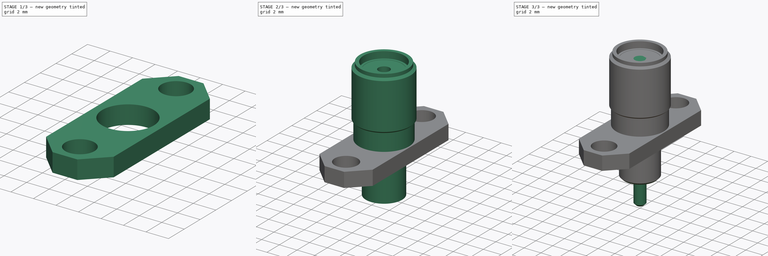
[diagram: build sequence overview — one tinted view per stage of 3, left to right]
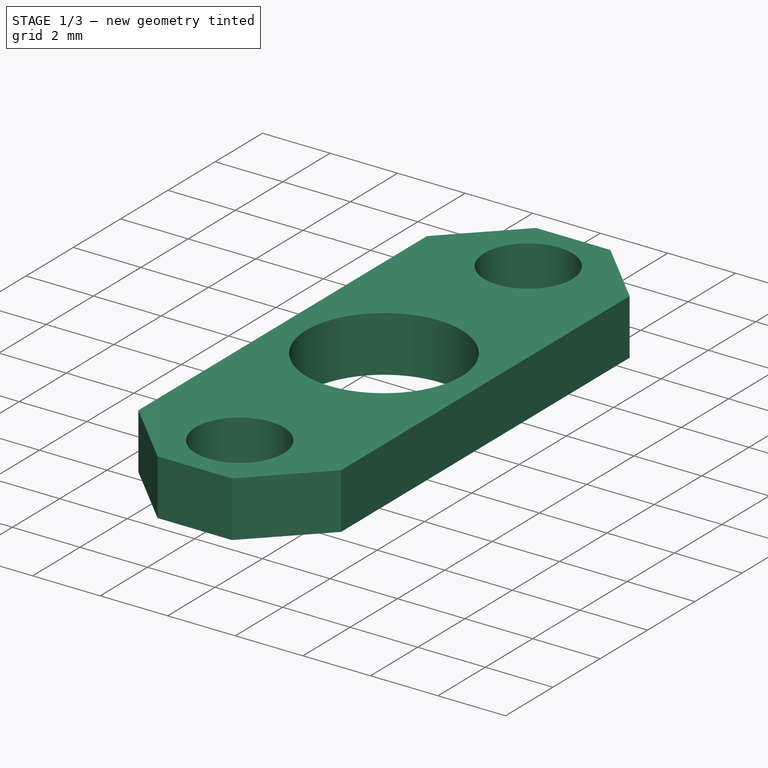
[diagram: stage 1 of 3 — iso view after this stage's code; geometry added in this stage tinted green]
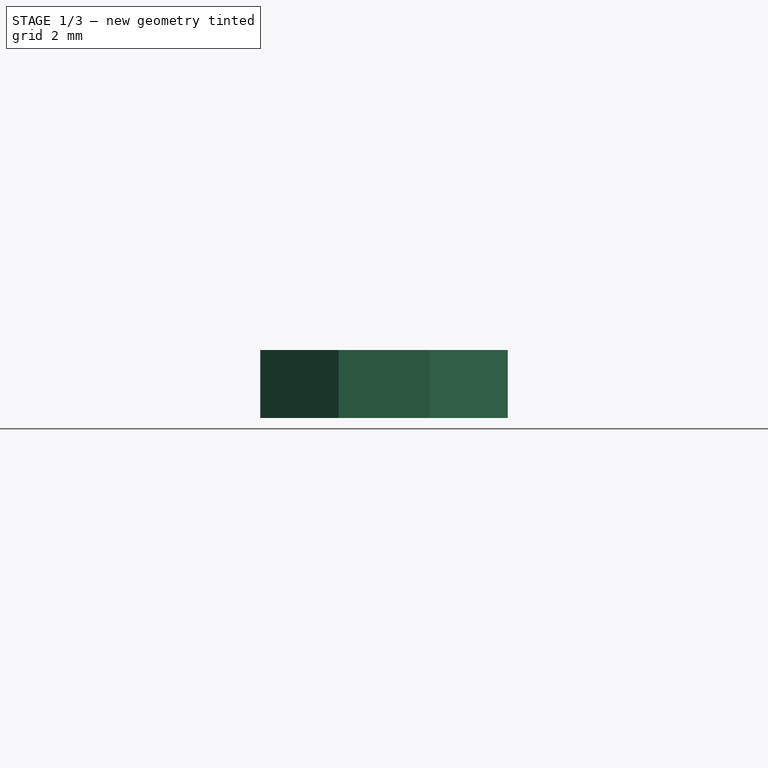
[diagram: stage 1 of 3 — front view after this stage's code; geometry added in this stage tinted green]
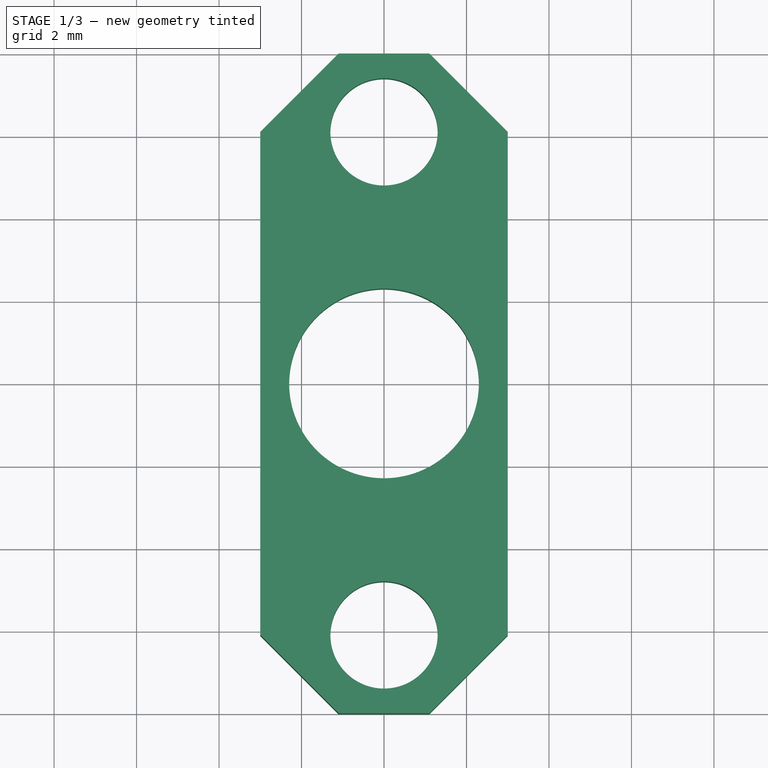
[diagram: stage 1 of 3 — top view after this stage's code; geometry added in this stage tinted green]
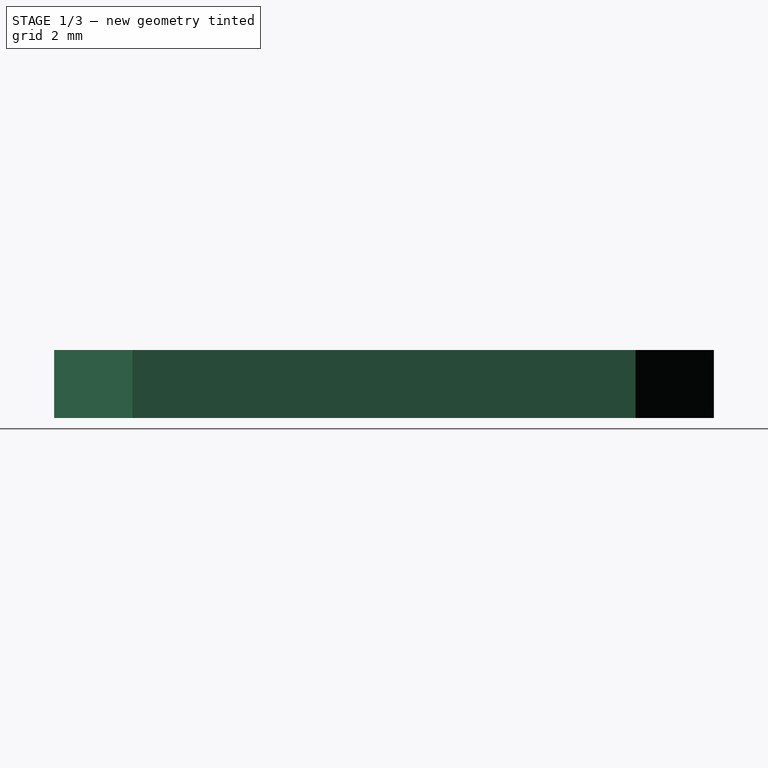
[diagram: stage 1 of 3 — right view after this stage's code; geometry added in this stage tinted green]
FCSTD DOCUMENT  (FreeCAD 0.19R23578 (Git))
Label: 132147-48
License: All rights reserved
LicenseURL: http://en.wikipedia.org/wiki/All_rights_reserved
objects: Sketcher::SketchObject×5, PartDesign::Pad×3, PartDesign::Pocket×1, PartDesign::Revolution×1, PartDesign::Chamfer×1, PartDesign::Body×1
note: 18 computed .brp shape members not serialized (recipe doc carries the construction recipe); baked Part::Feature solids carry a one-line shape summary decoded from their .brp

FEATURE [Sketcher::SketchObject] Sketch
  expr: Constraints[5] = 1.3
  sketch-geometry (11):
    g0: LineSegment StartX=-3 StartY=6.1 StartZ=0 EndX=-3 EndY=-6.1 EndZ=0
    g1: LineSegment StartX=3 StartY=6.1 StartZ=0 EndX=3 EndY=-6.1 EndZ=0
    g2: Circle CenterX=0 CenterY=6.1 CenterZ=0 NormalX=0 NormalY=0 NormalZ=1 AngleXU=0 Radius=1.3
    g3: Circle CenterX=0 CenterY=-6.1 CenterZ=0 NormalX=0 NormalY=0 NormalZ=1 AngleXU=0 Radius=1.3
    g4: Circle CenterX=-1e-16 CenterY=-1e-16 CenterZ=0 NormalX=0 NormalY=0 NormalZ=1 AngleXU=0 Radius=2.3
    g5: LineSegment StartX=-3 StartY=-6.1 StartZ=0 EndX=-1.1 EndY=-8 EndZ=0
    g6: LineSegment StartX=-1.1 StartY=-8 StartZ=0 EndX=1.1 EndY=-8 EndZ=0
    g7: LineSegment StartX=1.1 StartY=-8 StartZ=0 EndX=3 EndY=-6.1 EndZ=0
    g8: LineSegment StartX=3 StartY=6.1 StartZ=0 EndX=1.1 EndY=8 EndZ=0
    g9: LineSegment StartX=1.1 StartY=8 StartZ=0 EndX=-1.1 EndY=8 EndZ=0
    g10: LineSegment StartX=-1.1 StartY=8 StartZ=0 EndX=-3 EndY=6.1 EndZ=0
  constraints (31):
    c: Vertical(g1)
    c: Vertical(g0)
    c: DistanceX(g0,g1) = 6
    c: PointOnObject(g2,g-2)
    c: Equal(g2,g3)
    c: Radius(g2) = 1.3
    c: Radius(g4) = 2.3
    c: Coincident(g5,g0)
    c: Coincident(g6,g5)
    c: Horizontal(g6)
    c: Coincident(g7,g6)
    c: Coincident(g7,g1)
    c: Coincident(g8,g1)
    c: Coincident(g9,g8)
    c: Horizontal(g9)
    c: Coincident(g10,g9)
    c: Coincident(g10,g0)
    c: Horizontal(g0,g1)
    c: Horizontal(g0,g1)
    c: DistanceY(g5,g9) = 16
    c: DistanceY(g0,g0) = 12.2
    c: DistanceY(g4,g2) = 6.1
    c: DistanceY(g3,g4) = 6.1
    c: Vertical(g8,g6)
    c: Vertical(g9,g5)
    c: Angle(g0,g10) = 2.35619
    c: Angle(g8,g1) = 2.35619
    c: Angle(g1,g7) = 2.35619
    c: Symmetric(g1,g0,g4)
    c: Symmetric(g0,g1,g-1)
    c: PointOnObject(g3,g-2)
FEATURE [PartDesign::Pad] Pad
  Direction = (1,1,1)
  Length = 1.65
  Length2 = 100
  Profile = -> Sketch
  Type = 0
  expr: Length = 1.65
FEATURE [Sketcher::SketchObject] Sketch001
  Placement = pos=(0,0,0) rot=(0.57735,0.57735,0.57735;2.0944rad)
  expr: Constraints[17] = 9.529999999999999
  expr: Constraints[16] = 0.212 * 25.4 / 2
  expr: Constraints[15] = 0.181 * 25.4 / 2
  sketch-geometry (10):
    g0: LineSegment StartX=2.82916 StartY=1.1 StartZ=0 EndX=2.82916 EndY=3.57975 EndZ=0
    g1: LineSegment StartX=2.82916 StartY=3.57975 StartZ=0 EndX=3.00381 EndY=3.7544 EndZ=0
    g2: LineSegment StartX=3.00381 StartY=3.7544 StartZ=0 EndX=3.00381 EndY=8.93817 EndZ=0
    g3: LineSegment StartX=3.00381 StartY=8.93817 StartZ=0 EndX=2.6924 EndY=9.14224 EndZ=0
    g4: LineSegment StartX=2.6924 StartY=9.14224 StartZ=0 EndX=2.6924 EndY=9.53 EndZ=0
    g5: LineSegment StartX=2.6924 StartY=9.53 StartZ=0 EndX=2.2987 EndY=9.53 EndZ=0
    g6: LineSegment StartX=2.2987 StartY=9.53 StartZ=0 EndX=2.2987 EndY=8.77729 EndZ=0
    g7: LineSegment StartX=2.05 StartY=8.77729 StartZ=0 EndX=2.05 EndY=1.1 EndZ=0
    g8: LineSegment StartX=2.05 StartY=1.1 StartZ=0 EndX=2.82916 EndY=1.1 EndZ=0
    g9: LineSegment StartX=2.2987 StartY=8.77729 StartZ=0 EndX=2.05 EndY=8.77729 EndZ=0
  constraints (23):
    c: Vertical(g0)
    c: Coincident(g1,g0)
    c: Coincident(g2,g1)
    c: Vertical(g2)
    c: Coincident(g3,g2)
    c: Coincident(g6,g5)
    c: Vertical(g7)
    c: Coincident(g8,g7)
    c: Coincident(g8,g0)
    c: Horizontal(g8)
    c: Horizontal(g5)
    c: Vertical(g6)
    c: Vertical(g4)
    c: Coincident(g3,g4)
    c: Coincident(g4,g5)
    c: DistanceX(g-1,g5) = 2.2987
    c: DistanceX(g-1,g4) = 2.6924
    c: DistanceY(g-1,g5) = 9.53
    c: Coincident(g9,g6)
    c: Horizontal(g9)
    c: Coincident(g7,g9)
    c: DistanceY(g-1,g7) = 1.1
    c: DistanceX(g-1,g7) = 2.05
FEATURE [Sketcher::SketchObject] Sketch002
  sketch-geometry (2):
    g0: Circle CenterX=0 CenterY=0 CenterZ=0 NormalX=0 NormalY=0 NormalZ=1 AngleXU=0 Radius=2.75
    g1: Circle CenterX=0 CenterY=0 CenterZ=0 NormalX=0 NormalY=0 NormalZ=1 AngleXU=0 Radius=2.4
  constraints (4):
    c: Coincident(g0,g-1)
    c: Coincident(g1,g0)
    c: Radius(g1) = 2.4
    c: Radius(g0) = 2.75
FEATURE [PartDesign::Pocket] Pocket
  BaseFeature = -> Pad
  Length = 0.5
  Length2 = 100
  Profile = -> Sketch002
  Reversed = true
  Type = 0
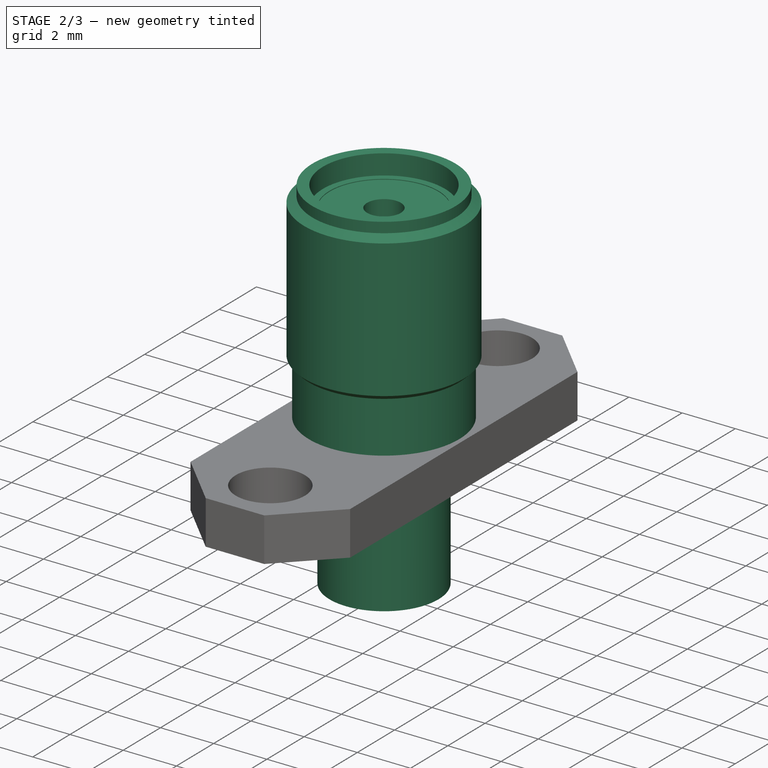
[diagram: stage 2 of 3 — iso view after this stage's code; geometry added in this stage tinted green]
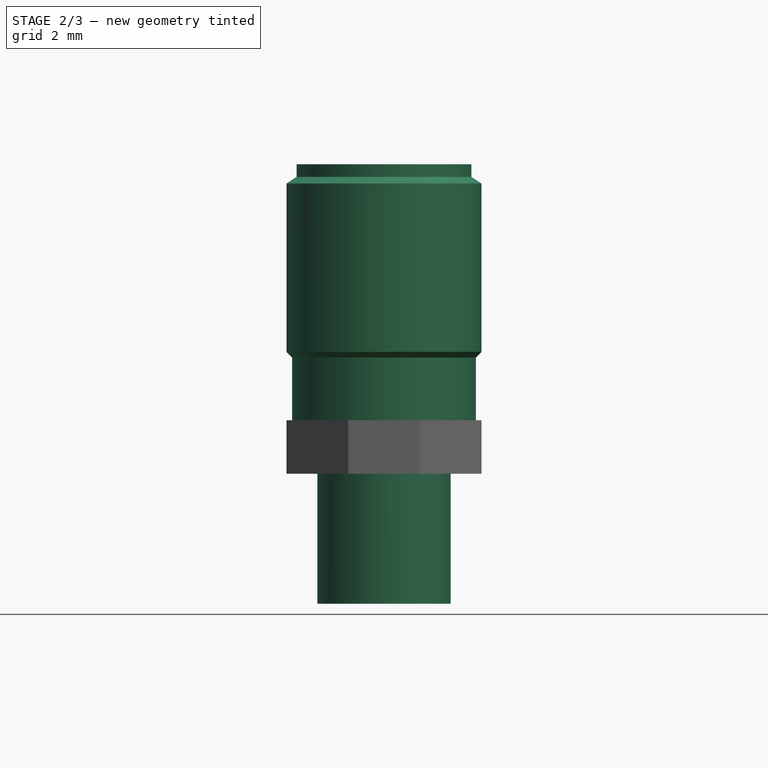
[diagram: stage 2 of 3 — front view after this stage's code; geometry added in this stage tinted green]
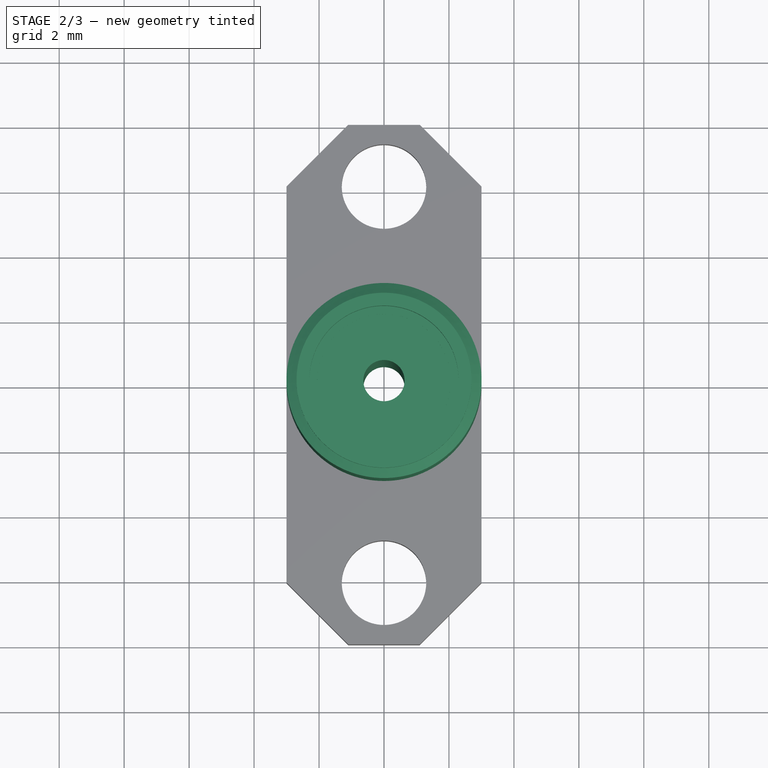
[diagram: stage 2 of 3 — top view after this stage's code; geometry added in this stage tinted green]
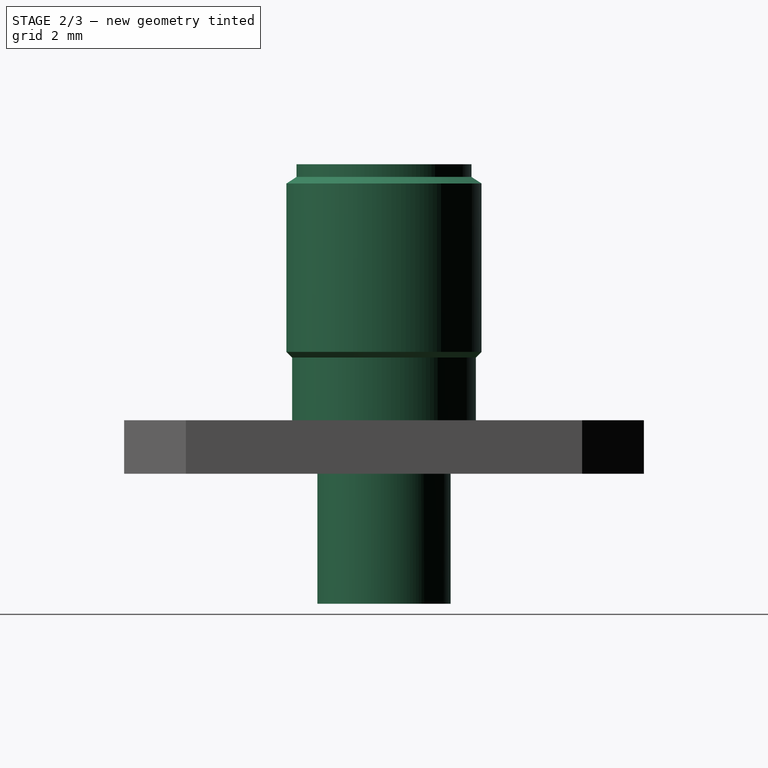
[diagram: stage 2 of 3 — right view after this stage's code; geometry added in this stage tinted green]
FEATURE [PartDesign::Revolution] Revolution
  Angle = 360
  Axis = (0,0,1)
  Base = (0,0,0)
  BaseFeature = -> Pocket
  Profile = -> Sketch001
  ReferenceAxis = -> Sketch001 [V_Axis]
  Reversed = true
FEATURE [Sketcher::SketchObject] Sketch003  label="Sketch-Isolation"
  expr: Constraints[2] = 1.27 / 2
  sketch-geometry (2):
    g0: Circle CenterX=0 CenterY=0 CenterZ=0 NormalX=0 NormalY=0 NormalZ=1 AngleXU=0 Radius=2.05
    g1: Circle CenterX=0 CenterY=0 CenterZ=0 NormalX=0 NormalY=0 NormalZ=1 AngleXU=0 Radius=0.635
  constraints (4):
    c: Coincident(g0,g-1)
    c: Coincident(g1,g0)
    c: Radius(g1) = 0.635
    c: Radius(g0) = 2.05
FEATURE [Sketcher::SketchObject] Sketch004  label="Sketch-Pin"
  expr: Constraints[1] = 1.27 / 2
  sketch-geometry (1):
    g0: Circle CenterX=0 CenterY=0 CenterZ=0 NormalX=0 NormalY=0 NormalZ=1 AngleXU=0 Radius=0.635
  constraints (2):
    c: Coincident(g0,g-1)
    c: Radius(g0) = 0.635
FEATURE [PartDesign::Pad] Pad001
  BaseFeature = -> Revolution
  Direction = (1,1,1)
  Length = 8.75
  Length2 = 4
  Profile = -> Sketch003
  Type = 4
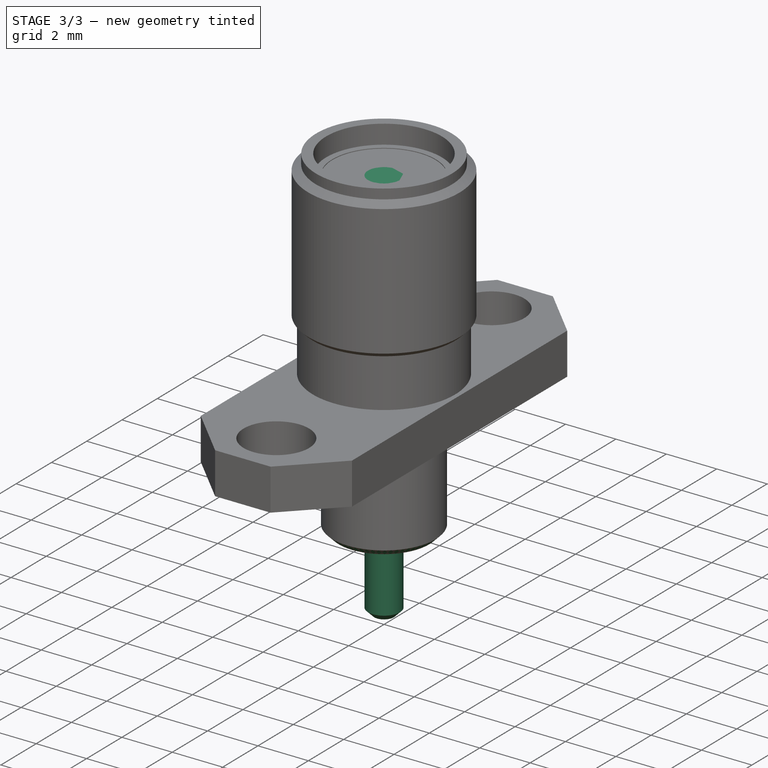
[diagram: stage 3 of 3 — iso view after this stage's code; geometry added in this stage tinted green]
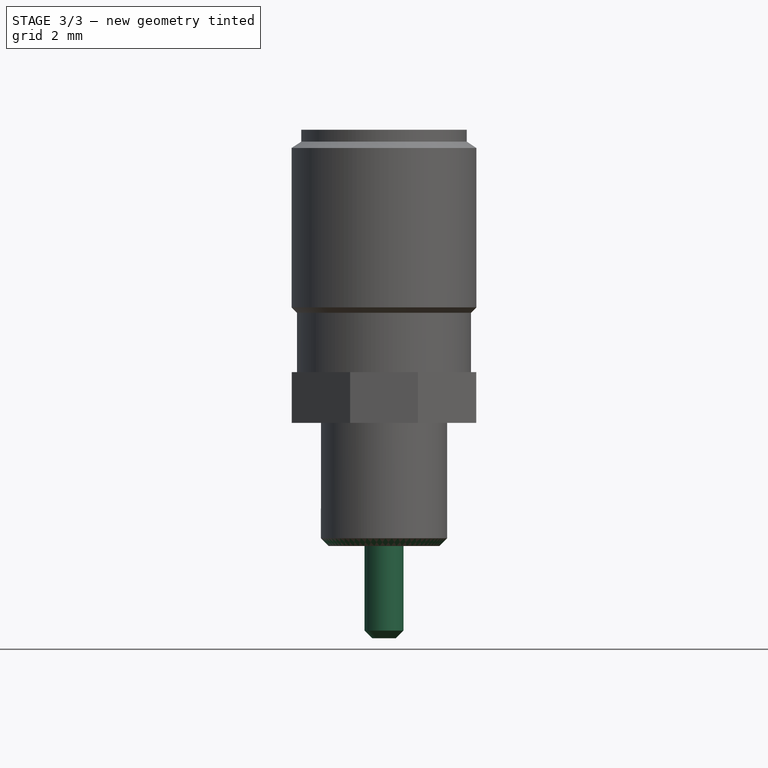
[diagram: stage 3 of 3 — front view after this stage's code; geometry added in this stage tinted green]
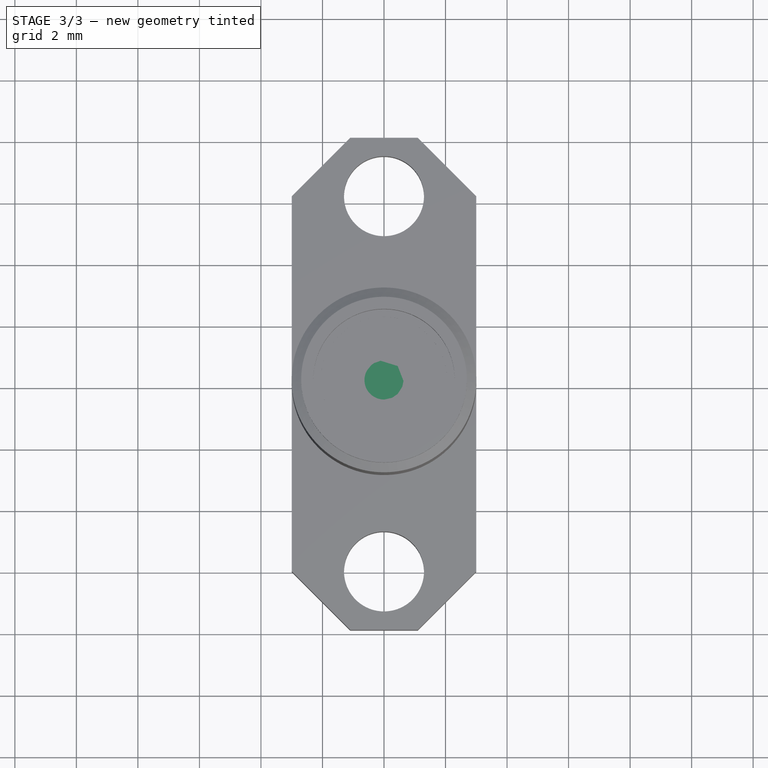
[diagram: stage 3 of 3 — top view after this stage's code; geometry added in this stage tinted green]
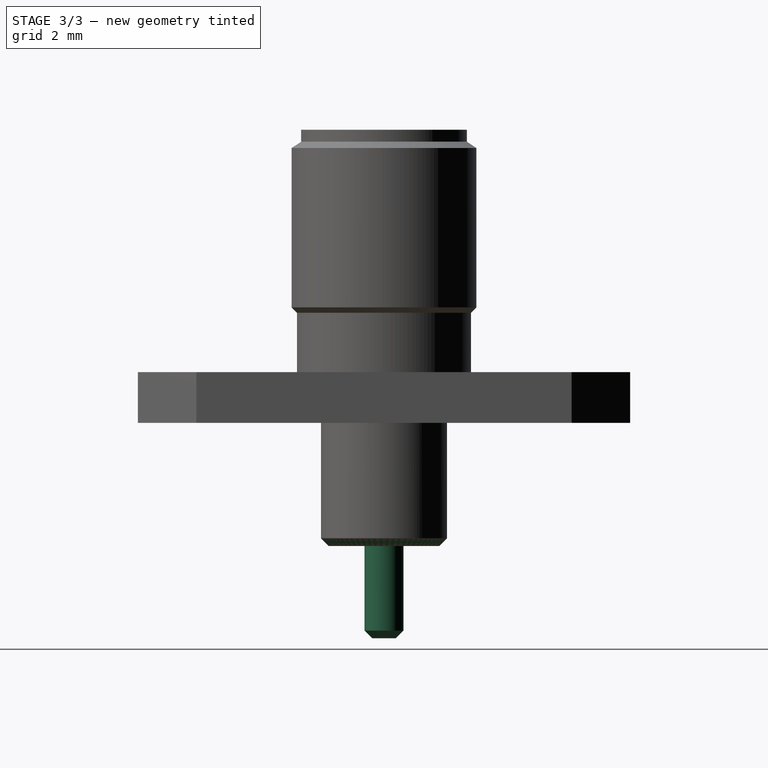
[diagram: stage 3 of 3 — right view after this stage's code; geometry added in this stage tinted green]
FEATURE [PartDesign::Pad] Pad002
  BaseFeature = -> Pad001
  Direction = (1,1,1)
  Length = 8.75
  Length2 = 7
  Profile = -> Sketch004
  Type = 4
FEATURE [PartDesign::Chamfer] Chamfer
  Angle = 45
  Base = -> Pad002 [Edge54,Edge60]
  BaseFeature = -> Pad002
  ChamferType = 0
  FlipDirection = false
  Size = 0.25
  Size2 = 1
  SupportTransform = false
FEATURE [PartDesign::Body] Body
  Group = -> [Sketch,Pad,Sketch001,Sketch002,Pocket,Revolution,Sketch003,Sketch004,Pad001,Pad002,Chamfer]
  Origin = -> Origin
  Tip = -> Chamfer
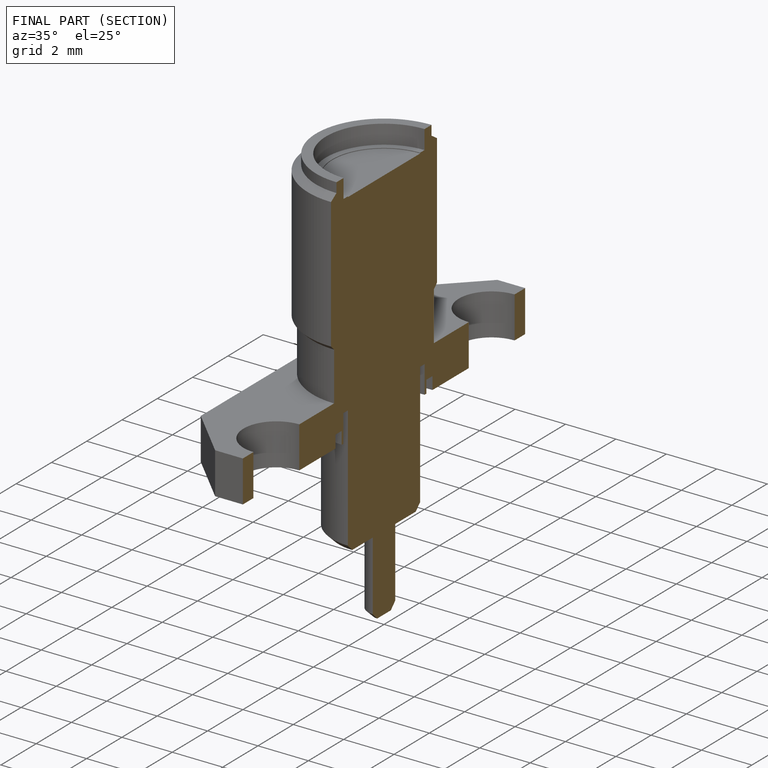
[diagram: finished part — half-section view (interior)]
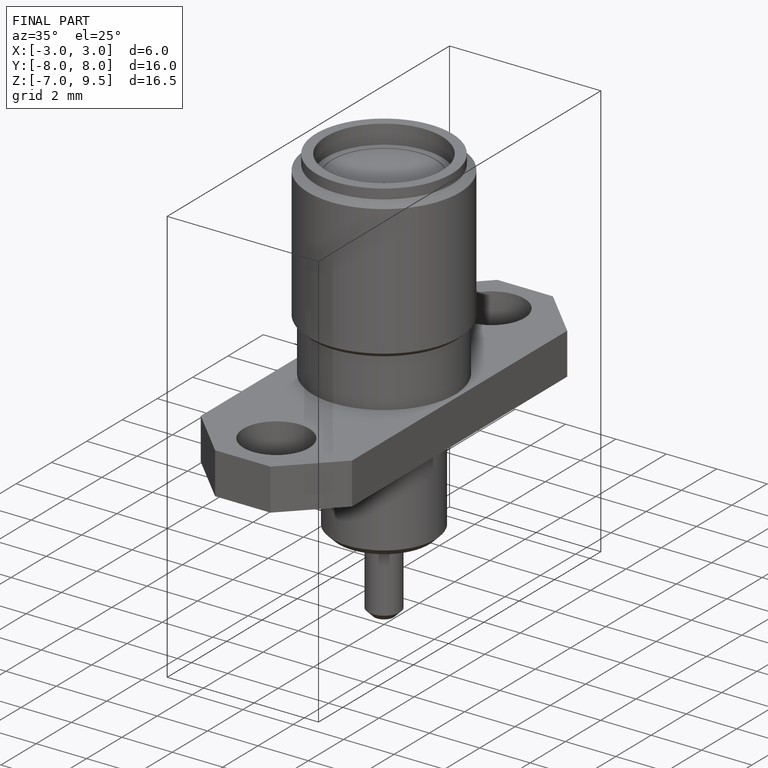
[diagram: finished part — iso view with bounding-box wireframe]
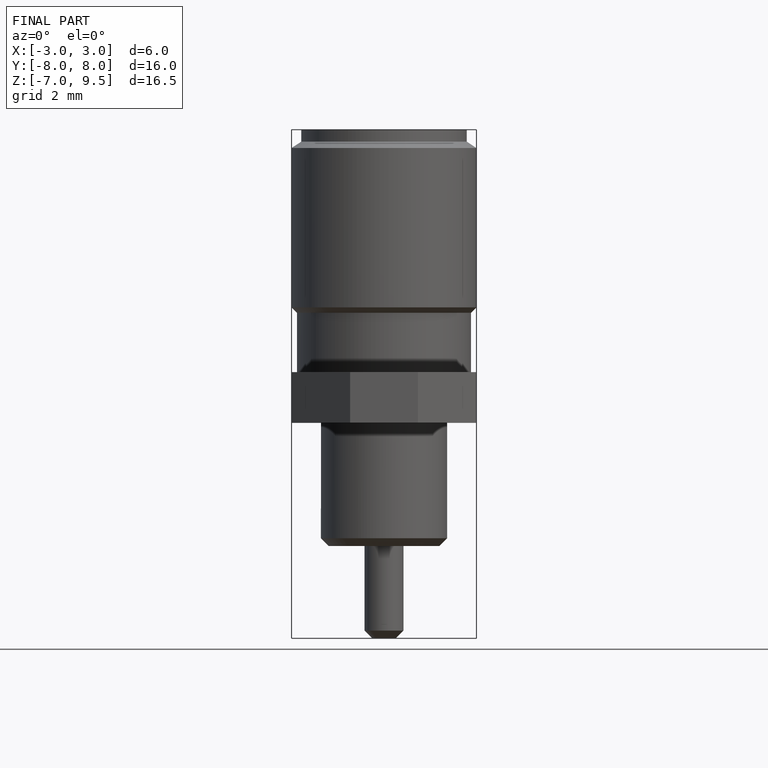
[diagram: finished part — front view with bounding-box wireframe]
